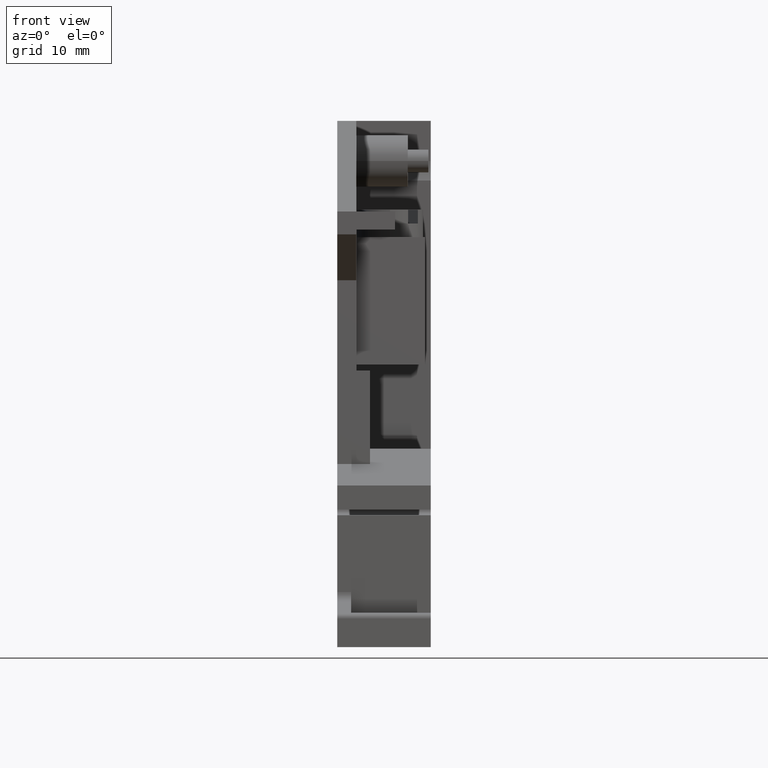
[diagram: clean part render]
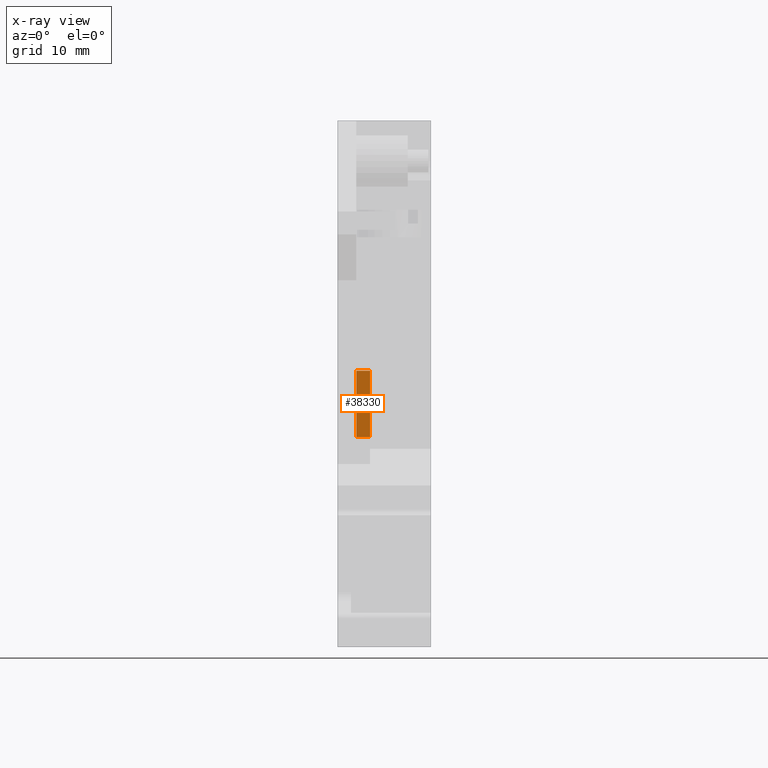
[diagram: x-ray — body ghosted, one internal face saturated and labeled with its STEP entity id]
A machine part, front view, then the same camera in x-ray: the body is ghosted and one INTERNAL B-rep face — a face not visible from any outside direction — is saturated and labeled: STEP entity #38330.
In plain terms, the highlighted planar face has unit normal (0, 1, 0).
Its self-contained STEP definition (entity closure, byte-faithful):
#15680=CARTESIAN_POINT('',(27.9791997327281,8.45865817770094,2.85));
#15690=VERTEX_POINT('',#15680);
#22390=CARTESIAN_POINT('',(27.9791997327281,8.45865817770094,0.));
#22400=DIRECTION('',(0.,0.,-1.));
#22410=VECTOR('',#22400,1.);
#22420=LINE('',#22390,#22410);
#22430=CARTESIAN_POINT('',(27.9791997327281,8.45865817770094,1.65));
#22440=VERTEX_POINT('',#22430);
#22450=EDGE_CURVE('',#15690,#22440,#22420,.T.);
#37860=CARTESIAN_POINT('',(27.9791997327281,14.2586581777009,2.85));
#37870=VERTEX_POINT('',#37860);
#37900=CARTESIAN_POINT('',(27.9791997327281,7.45865817770094,2.85));
#37910=DIRECTION('',(0.,1.,0.));
#37920=VECTOR('',#37910,1.);
#37930=LINE('',#37900,#37920);
#37940=EDGE_CURVE('',#15690,#37870,#37930,.T.);
#38100=CARTESIAN_POINT('',(27.9791997327281,14.2586581777009,1.25));
#38110=DIRECTION('',(1.,0.,0.));
#38120=DIRECTION('',(0.,-1.,0.));
#38130=AXIS2_PLACEMENT_3D('',#38100,#38110,#38120);
#38140=PLANE('',#38130);
#38150=ORIENTED_EDGE('',*,*,#22450,.T.);
#38160=ORIENTED_EDGE('',*,*,#37940,.F.);
#38170=CARTESIAN_POINT('',(27.9791997327281,14.2586581777009,1.25));
#38180=DIRECTION('',(0.,0.,1.));
#38190=VECTOR('',#38180,1.);
#38200=LINE('',#38170,#38190);
#38210=CARTESIAN_POINT('',(27.9791997327281,14.2586581777009,1.65));
#38220=VERTEX_POINT('',#38210);
#38230=EDGE_CURVE('',#38220,#37870,#38200,.T.);
#38240=ORIENTED_EDGE('',*,*,#38230,.T.);
#38250=CARTESIAN_POINT('',(27.9791997327281,0.,1.65));
#38260=DIRECTION('',(0.,1.,0.));
#38270=VECTOR('',#38260,1.);
#38280=LINE('',#38250,#38270);
#38290=EDGE_CURVE('',#22440,#38220,#38280,.T.);
#38300=ORIENTED_EDGE('',*,*,#38290,.T.);
#38310=EDGE_LOOP('',(#38300,#38240,#38160,#38150));
#38320=FACE_OUTER_BOUND('',#38310,.T.);
#38330=ADVANCED_FACE('',(#38320),#38140,.T.);